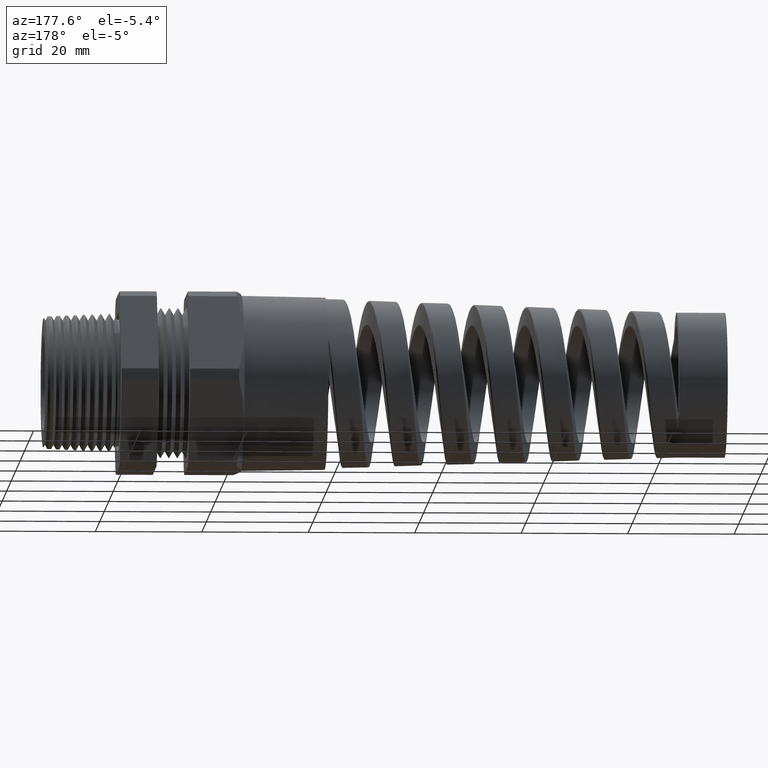
[diagram: clean part render]
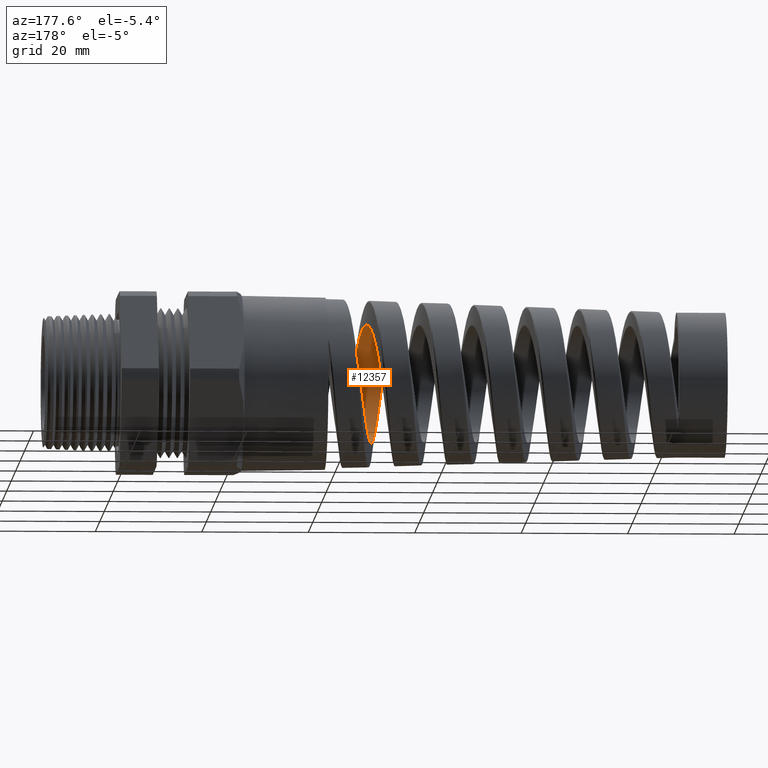
[diagram: same view with one face highlighted and labeled with its STEP entity id]
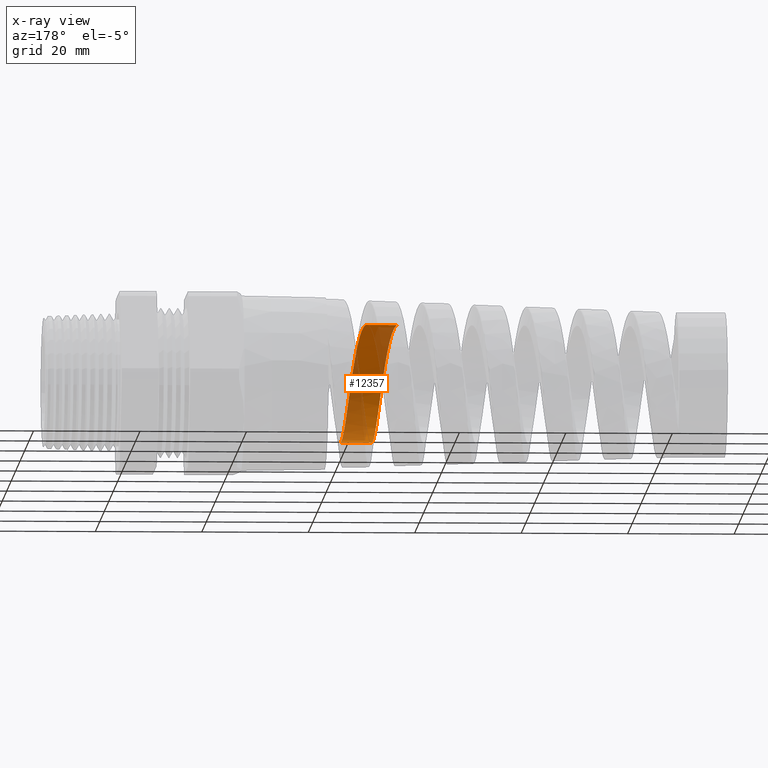
[diagram: x-ray of the same camera — body ghosted, the highlighted face saturated]
A machine part, auxiliary view. The second image highlights one B-rep face of the part: STEP entity #12357.
The next image is the same camera in x-ray: the body ghosted, the highlighted face saturated — about 46% of this face is hidden behind the body in this view.
In plain terms, the highlighted cylindrical surface (partial cylindrical patch) has radius 11.1145 mm, axis along (1, 0, 0).
Its self-contained STEP definition (entity closure, byte-faithful):
#7270 = DIRECTION ( 'NONE',  ( 1.000000000000000000, 0.0000000000000000000, 0.0000000000000000000 ) ) ;
#7271 = VECTOR ( 'NONE', #7270, 39.37007874015748100 ) ;
#7272 = CARTESIAN_POINT ( 'NONE',  ( 0.4924815508901369000, 0.0000000000000000000, -0.4375801833083611800 ) ) ;
#7273 = LINE ( 'NONE', #7272, #7271 ) ;
#7274 = CARTESIAN_POINT ( 'NONE',  ( -1.640475782734829100, 1.012704588276322600E-015, -0.4375801833083611300 ) ) ;
#7492 = CARTESIAN_POINT ( 'NONE',  ( -1.996839665240946100, -0.3932263463374022800, 0.1941140427714756500 ) ) ;
#7493 = CARTESIAN_POINT ( 'NONE',  ( -2.000836526458027900, -0.3797477932531513300, 0.2192768891328715200 ) ) ;
#7494 = CARTESIAN_POINT ( 'NONE',  ( -2.006857070277007000, -0.3559764761294149100, 0.2548739810332262300 ) ) ;
#7495 = CARTESIAN_POINT ( 'NONE',  ( -2.008867674944845300, -0.3474562256372323300, 0.2663793388606673400 ) ) ;
#7496 = CARTESIAN_POINT ( 'NONE',  ( -2.012917233746708900, -0.3291911031545885500, 0.2886468404638837200 ) ) ;
#7497 = CARTESIAN_POINT ( 'NONE',  ( -2.014951048133228500, -0.3194627252952232400, 0.2993744413728673400 ) ) ;
#7498 = CARTESIAN_POINT ( 'NONE',  ( -2.020992823617042200, -0.2890766572365762700, 0.3297444340240807100 ) ) ;
#7499 = CARTESIAN_POINT ( 'NONE',  ( -2.024985057849868900, -0.2670395875408578800, 0.3478312981305349300 ) ) ;
#7500 = CARTESIAN_POINT ( 'NONE',  ( -2.031026918033858500, -0.2313258954973929400, 0.3717120269896500600 ) ) ;
#7501 = CARTESIAN_POINT ( 'NONE',  ( -2.033060776853001800, -0.2189062372299142000, 0.3791620001734821700 ) ) ;
#7502 = CARTESIAN_POINT ( 'NONE',  ( -2.037110197600098300, -0.1935053526841467900, 0.3927332957062582000 ) ) ;
#7503 = CARTESIAN_POINT ( 'NONE',  ( -2.039120905464983000, -0.1805597005689564800, 0.3988460695319048200 ) ) ;
#7504 = CARTESIAN_POINT ( 'NONE',  ( -2.045141097427955100, -0.1410108032164527100, 0.4152188260497285400 ) ) ;
#7505 = CARTESIAN_POINT ( 'NONE',  ( -2.049138284610035200, -0.1137022294384409500, 0.4235316978501310100 ) ) ;
#7506 = CARTESIAN_POINT ( 'NONE',  ( -2.055218309017004000, -0.07129682556079407200, 0.4319732622499446500 ) ) ;
#7507 = CARTESIAN_POINT ( 'NONE',  ( -2.057249094145626500, -0.05699126124738606400, 0.4340890024107069100 ) ) ;
#7508 = CARTESIAN_POINT ( 'NONE',  ( -2.061274203192465100, -0.02850308065314984000, 0.4368853857315105300 ) ) ;
#7509 = CARTESIAN_POINT ( 'NONE',  ( -2.063278111506845000, -0.01425355427090449100, 0.4375801833083611800 ) ) ;
#7510 = CARTESIAN_POINT ( 'NONE',  ( -2.065282973345239400, 1.502516396515344700E-015, 0.4375801833083611300 ) ) ;
#7511 = CARTESIAN_POINT ( 'NONE',  ( -1.871947770003175700, 4.670606366667869800E-013, -0.4375801833083611800 ) ) ;
#7512 = B_SPLINE_CURVE_WITH_KNOTS ( 'NONE', 3,
 ( #7510, #7509, #7508, #7507, #7506, #7505, #7504, #7503, #7502, #7501, #7500, #7499, #7498, #7497, #7496, #7495, #7494, #7493, #7492, #7565, #7564, #7563, #7562, #7561, #7560, #7559, #7558, #7557, #7556, #7555, #7554, #7553, #7552, #7551, #7550, #7549, #7548, #7547, #7546, #7545, #7544, #7543, #7542, #7541, #7540, #7539, #7538, #7537, #7536, #7535 ),
 .UNSPECIFIED., .F., .F.,
 ( 4, 2, 2, 2, 2, 2, 2, 2, 2, 2, 2, 2, 2, 2, 2, 2, 2, 2, 2, 2, 2, 2, 2, 2, 4 ),
 ( 0.3746318151717346100, 0.3757277375148944700, 0.3768236598580543300, 0.3790155045443740500, 0.3801114268875339100, 0.3812073492306937700, 0.3833991939170134900, 0.3844951162601733500, 0.3855910386033332100, 0.3877828832896529400, 0.3888788056328128000, 0.3899747279759726600, 0.3910706503191325200, 0.3921665726622923800, 0.3943584173486121600, 0.3954543396917720200, 0.3965502620349318800, 0.3987421067212516000, 0.3998380290644114600, 0.4009339514075713200, 0.4031257960938910400, 0.4053176407802108200, 0.4064135631233706800, 0.4075094854665305400, 0.4097013301528502600 ),
 .UNSPECIFIED. ) ;
#7513 = CARTESIAN_POINT ( 'NONE',  ( -2.065282973345239400, 1.502516396515344700E-015, 0.4375801833083611300 ) ) ;
#7514 = DIRECTION ( 'NONE',  ( 0.0000000000000000000, 0.0000000000000000000, -1.000000000000000000 ) ) ;
#7515 = DIRECTION ( 'NONE',  ( 1.000000000000000000, 0.0000000000000000000, 0.0000000000000000000 ) ) ;
#7516 = CARTESIAN_POINT ( 'NONE',  ( 0.4924815508901369000, 0.0000000000000000000, 0.0000000000000000000 ) ) ;
#7517 = AXIS2_PLACEMENT_3D ( 'NONE', #7516, #7515, #7514 ) ;
#7518 = CYLINDRICAL_SURFACE ( 'NONE', #7517, 0.4375801833083611800 ) ;
#7519 = FACE_OUTER_BOUND ( 'NONE', #12358, .T. ) ;
#7528 = B_SPLINE_CURVE_WITH_KNOTS ( 'NONE', 3,
 ( #7610, #7609, #7608, #7607, #7606, #7605, #7604, #7603, #7602, #7601, #7600, #7599, #7598, #7597, #7596, #7595, #7594, #7593, #7592, #7591, #7590, #7589, #7588, #7587, #7586, #7585, #7584, #7583, #7582, #7581, #7580, #7579, #7578, #7577, #7576, #7575, #7574, #7573, #7572, #7571, #7570, #7569, #7568, #7567, #7566 ),
 .UNSPECIFIED., .F., .F.,
 ( 4, 2, 2, 2, 2, 2, 2, 2, 2, 2, 2, 2, 2, 2, 2, 2, 1, 2, 2, 2, 2, 2, 4 ),
 ( 0.07060793751075079800, 0.07170483547118865200, 0.07280173343162649200, 0.07499552935250218500, 0.07718932527337787900, 0.07938312119425358600, 0.08048001915469142600, 0.08157691711512928000, 0.08377071303600498700, 0.08596450895688069500, 0.08706140691731854800, 0.08815830487775640200, 0.09035210079863211000, 0.09254589671950783100, 0.09473969264038353800, 0.09583659060082139200, 0.09693348856125924600, 0.09803038652169709900, 0.09912728448213495300, 0.1013210804030106600, 0.1024179783634485100, 0.1035148763238863700, 0.1057086722447620900 ),
 .UNSPECIFIED. ) ;
#7530 = CARTESIAN_POINT ( 'NONE',  ( -1.835009123709763900, -1.705270739795114300E-015, 0.4375801833083611300 ) ) ;
#7531 = DIRECTION ( 'NONE',  ( 1.000000000000000000, 0.0000000000000000000, 0.0000000000000000000 ) ) ;
#7532 = VECTOR ( 'NONE', #7531, 39.37007874015748100 ) ;
#7533 = CARTESIAN_POINT ( 'NONE',  ( 0.4924815508901369000, 5.358811708588965500E-017, 0.4375801833083611800 ) ) ;
#7534 = LINE ( 'NONE', #7533, #7532 ) ;
#7535 = CARTESIAN_POINT ( 'NONE',  ( -1.871947770003175700, 4.670606366667869800E-013, -0.4375801833083611800 ) ) ;
#7536 = CARTESIAN_POINT ( 'NONE',  ( -1.875965779190117200, -0.02857382789006946200, -0.4375801833083916000 ) ) ;
#7537 = CARTESIAN_POINT ( 'NONE',  ( -1.879956218431413600, -0.05695936180215776400, -0.4348075237539161800 ) ) ;
#7538 = CARTESIAN_POINT ( 'NONE',  ( -1.886018305370918500, -0.09923383224083143200, -0.4264216775205185200 ) ) ;
#7539 = CARTESIAN_POINT ( 'NONE',  ( -1.888058002787099500, -0.1133152033557415200, -0.4228970453009934800 ) ) ;
#7540 = CARTESIAN_POINT ( 'NONE',  ( -1.892094246377155700, -0.1407727616816324700, -0.4145663708073654700 ) ) ;
#7541 = CARTESIAN_POINT ( 'NONE',  ( -1.894100552423184000, -0.1542207473153192100, -0.4097506525728247300 ) ) ;
#7542 = CARTESIAN_POINT ( 'NONE',  ( -1.900114000725964900, -0.1937343880561690200, -0.3933907486931653200 ) ) ;
#7543 = CARTESIAN_POINT ( 'NONE',  ( -1.904126599453307400, -0.2190430952141089700, -0.3799083624050561000 ) ) ;
#7544 = CARTESIAN_POINT ( 'NONE',  ( -1.912250431891220100, -0.2670667138934850200, -0.3478298603001244700 ) ) ;
#7545 = CARTESIAN_POINT ( 'NONE',  ( -1.916248811388823000, -0.2891294848505902600, -0.3296879427150015100 ) ) ;
#7546 = CARTESIAN_POINT ( 'NONE',  ( -1.922264740363118800, -0.3193938414182880300, -0.2994451307461990500 ) ) ;
#7547 = CARTESIAN_POINT ( 'NONE',  ( -1.924273312514574100, -0.3290069240641547200, -0.2888555979801711900 ) ) ;
#7548 = CARTESIAN_POINT ( 'NONE',  ( -1.928317079109022500, -0.3472578988582117900, -0.2666365770992768500 ) ) ;
#7549 = CARTESIAN_POINT ( 'NONE',  ( -1.930355494040718200, -0.3559012084434970400, -0.2549829566363081000 ) ) ;
#7550 = CARTESIAN_POINT ( 'NONE',  ( -1.936406186302702700, -0.3797930429594811300, -0.2192165765474397300 ) ) ;
#7551 = CARTESIAN_POINT ( 'NONE',  ( -1.940396399810292900, -0.3932319235939372200, -0.1940713017476605700 ) ) ;
#7552 = CARTESIAN_POINT ( 'NONE',  ( -1.946430907046423000, -0.4096739374012776100, -0.1544290503957180000 ) ) ;
#7553 = CARTESIAN_POINT ( 'NONE',  ( -1.948458601579748500, -0.4145465954339159800, -0.1408389428717682100 ) ) ;
#7554 = CARTESIAN_POINT ( 'NONE',  ( -1.952516139996437700, -0.4229219484017797100, -0.1132321207746741500 ) ) ;
#7555 = CARTESIAN_POINT ( 'NONE',  ( -1.954529949355478600, -0.4263969608850170000, -0.09932705766815595700 ) ) ;
#7556 = CARTESIAN_POINT ( 'NONE',  ( -1.960554928251767400, -0.4347483218985832600, -0.05731995012031838200 ) ) ;
#7557 = CARTESIAN_POINT ( 'NONE',  ( -1.964547126317579300, -0.4375701778664627400, -0.02892830639855490500 ) ) ;
#7558 = CARTESIAN_POINT ( 'NONE',  ( -1.970616740796946200, -0.4375851465630029600, 0.01423653724975193300 ) ) ;
#7559 = CARTESIAN_POINT ( 'NONE',  ( -1.972653138405644700, -0.4368719196520087800, 0.02871675586839636200 ) ) ;
#7560 = CARTESIAN_POINT ( 'NONE',  ( -1.976683994741606200, -0.4340574028378047000, 0.05723545483121632300 ) ) ;
#7561 = CARTESIAN_POINT ( 'NONE',  ( -1.978689755675427000, -0.4319584525207618200, 0.07135456982436649800 ) ) ;
#7562 = CARTESIAN_POINT ( 'NONE',  ( -1.982699779634240000, -0.4263991748713575900, 0.09931426386968396400 ) ) ;
#7563 = CARTESIAN_POINT ( 'NONE',  ( -1.984703642006097700, -0.4229388215680687200, 0.1131548954005036200 ) ) ;
#7564 = CARTESIAN_POINT ( 'NONE',  ( -1.988728768420438400, -0.4146402617416499200, 0.1405515225292907300 ) ) ;
#7565 = CARTESIAN_POINT ( 'NONE',  ( -1.990759748237481500, -0.4097748828117991900, 0.1541708899191012400 ) ) ;
#7566 = CARTESIAN_POINT ( 'NONE',  ( -1.835009123709763900, -1.705270739795114300E-015, 0.4375801833083611300 ) ) ;
#7567 = CARTESIAN_POINT ( 'NONE',  ( -1.830959761671625300, -0.02862179422430982000, 0.4375801833083611300 ) ) ;
#7568 = CARTESIAN_POINT ( 'NONE',  ( -1.826944370632943100, -0.05699508909885344500, 0.4347981105184678400 ) ) ;
#7569 = CARTESIAN_POINT ( 'NONE',  ( -1.820859199772065300, -0.09916474401018542100, 0.4264365432704877400 ) ) ;
#7570 = CARTESIAN_POINT ( 'NONE',  ( -1.818809572955730500, -0.1132323761481686400, 0.4229205427494585600 ) ) ;
#7571 = CARTESIAN_POINT ( 'NONE',  ( -1.814738936852544800, -0.1407647938854036400, 0.4145704153579421500 ) ) ;
#7572 = CARTESIAN_POINT ( 'NONE',  ( -1.812717380730324500, -0.1542340810056711300, 0.4097459187785024700 ) ) ;
#7573 = CARTESIAN_POINT ( 'NONE',  ( -1.806663094584837000, -0.1937695822179589200, 0.3933746017878537700 ) ) ;
#7574 = CARTESIAN_POINT ( 'NONE',  ( -1.802640550091581600, -0.2189716638058250000, 0.3799478870142468100 ) ) ;
#7575 = CARTESIAN_POINT ( 'NONE',  ( -1.796514601507940500, -0.2549679253890418900, 0.3559156026926366700 ) ) ;
#7576 = CARTESIAN_POINT ( 'NONE',  ( -1.794475239275041200, -0.2665567588704843000, 0.3473161513378674700 ) ) ;
#7577 = CARTESIAN_POINT ( 'NONE',  ( -1.790427906545106100, -0.2886698621038061300, 0.3291667136766042700 ) ) ;
#7578 = CARTESIAN_POINT ( 'NONE',  ( -1.786397275830452000, -0.3098047349451520400, 0.3100097142605088800 ) ) ;
#7579 = CARTESIAN_POINT ( 'NONE',  ( -1.782360382991304400, -0.3289993655041350000, 0.2888623226799988400 ) ) ;
#7580 = CARTESIAN_POINT ( 'NONE',  ( -1.778301268777133800, -0.3472046416952170300, 0.2667038821455419200 ) ) ;
#7581 = CARTESIAN_POINT ( 'NONE',  ( -1.776249587092890700, -0.3558530130831976100, 0.2550522900107295400 ) ) ;
#7582 = CARTESIAN_POINT ( 'NONE',  ( -1.770146921386694000, -0.3798102182613826100, 0.2191964823443452400 ) ) ;
#7583 = CARTESIAN_POINT ( 'NONE',  ( -1.766131991601074000, -0.3932463473871928800, 0.1940351765772014300 ) ) ;
#7584 = CARTESIAN_POINT ( 'NONE',  ( -1.758047930663513900, -0.4151341195537627800, 0.1412657151082197800 ) ) ;
#7585 = CARTESIAN_POINT ( 'NONE',  ( -1.753940406264620700, -0.4236037611574492400, 0.1133750258355805300 ) ) ;
#7586 = CARTESIAN_POINT ( 'NONE',  ( -1.745848388680020700, -0.4347557020448897200, 0.05728457462014643200 ) ) ;
#7587 = CARTESIAN_POINT ( 'NONE',  ( -1.741834627351077900, -0.4375661544955462600, 0.02890976394844292600 ) ) ;
#7588 = CARTESIAN_POINT ( 'NONE',  ( -1.735742959595395700, -0.4375871198610836700, -0.01413519199408706300 ) ) ;
#7589 = CARTESIAN_POINT ( 'NONE',  ( -1.733690665508854000, -0.4368784964327950300, -0.02863411883303060600 ) ) ;
#7590 = CARTESIAN_POINT ( 'NONE',  ( -1.729624398029513800, -0.4340602064095631700, -0.05722299029595713500 ) ) ;
#7591 = CARTESIAN_POINT ( 'NONE',  ( -1.727603948131670300, -0.4319574805304802800, -0.07136142105399861900 ) ) ;
#7592 = CARTESIAN_POINT ( 'NONE',  ( -1.721551905726198100, -0.4236146044258832200, -0.1133149859855705900 ) ) ;
#7593 = CARTESIAN_POINT ( 'NONE',  ( -1.717529077118849600, -0.4153592339139792200, -0.1406727466861520100 ) ) ;
#7594 = CARTESIAN_POINT ( 'NONE',  ( -1.709346198339529900, -0.3932431900410339700, -0.1940925252146130900 ) ) ;
#7595 = CARTESIAN_POINT ( 'NONE',  ( -1.705317542664336800, -0.3797337731532673400, -0.2192983108555866000 ) ) ;
#7596 = CARTESIAN_POINT ( 'NONE',  ( -1.699266301369359200, -0.3559804553617761400, -0.2548678087222657200 ) ) ;
#7597 = CARTESIAN_POINT ( 'NONE',  ( -1.697247034017262500, -0.3474754181905434500, -0.2663520348166715800 ) ) ;
#7598 = CARTESIAN_POINT ( 'NONE',  ( -1.693183856432384700, -0.3292674050792560600, -0.2885577041945813800 ) ) ;
#7599 = CARTESIAN_POINT ( 'NONE',  ( -1.691131800721219900, -0.3195192960989223800, -0.2993156610824900800 ) ) ;
#7600 = CARTESIAN_POINT ( 'NONE',  ( -1.685036891850956400, -0.2890657970505274300, -0.3297597560318743500 ) ) ;
#7601 = CARTESIAN_POINT ( 'NONE',  ( -1.681020654652162700, -0.2670181710520367900, -0.3478432703001617700 ) ) ;
#7602 = CARTESIAN_POINT ( 'NONE',  ( -1.672931870598636900, -0.2194924016455827600, -0.3796270933230929700 ) ) ;
#7603 = CARTESIAN_POINT ( 'NONE',  ( -1.668826458150370000, -0.1937844903163398200, -0.3933703655027224700 ) ) ;
#7604 = CARTESIAN_POINT ( 'NONE',  ( -1.660738420560507400, -0.1409899975295005600, -0.4152282429454198800 ) ) ;
#7605 = CARTESIAN_POINT ( 'NONE',  ( -1.656722300092552600, -0.1137025708773067600, -0.4235256162511320500 ) ) ;
#7606 = CARTESIAN_POINT ( 'NONE',  ( -1.650623860366568200, -0.07142856637875763500, -0.4319500296150727300 ) ) ;
#7607 = CARTESIAN_POINT ( 'NONE',  ( -1.648572688994670600, -0.05707123886279779500, -0.4340795394397079000 ) ) ;
#7608 = CARTESIAN_POINT ( 'NONE',  ( -1.644512745225381400, -0.02852037372562072500, -0.4368852951840728200 ) ) ;
#7609 = CARTESIAN_POINT ( 'NONE',  ( -1.642493492219258000, -0.01425473984493832300, -0.4375801833083613500 ) ) ;
#7610 = CARTESIAN_POINT ( 'NONE',  ( -1.640475782734829100, 1.012704588276322600E-015, -0.4375801833083611300 ) ) ;
#12336 = VERTEX_POINT ( 'NONE', #7274 ) ;
#12337 = ORIENTED_EDGE ( 'NONE', *, *, #12338, .F. ) ;
#12338 = EDGE_CURVE ( 'NONE', #12362, #12336, #7273, .T. ) ;
#12357 = ADVANCED_FACE ( 'NONE', ( #7519 ), #7518, .F. ) ;
#12358 = EDGE_LOOP ( 'NONE', ( #12359, #12363, #12366, #12337 ) ) ;
#12359 = ORIENTED_EDGE ( 'NONE', *, *, #12360, .F. ) ;
#12360 = EDGE_CURVE ( 'NONE', #12361, #12362, #7512, .T. ) ;
#12361 = VERTEX_POINT ( 'NONE', #7513 ) ;
#12362 = VERTEX_POINT ( 'NONE', #7511 ) ;
#12363 = ORIENTED_EDGE ( 'NONE', *, *, #12364, .T. ) ;
#12364 = EDGE_CURVE ( 'NONE', #12361, #12365, #7534, .T. ) ;
#12365 = VERTEX_POINT ( 'NONE', #7530 ) ;
#12366 = ORIENTED_EDGE ( 'NONE', *, *, #12367, .F. ) ;
#12367 = EDGE_CURVE ( 'NONE', #12336, #12365, #7528, .T. ) ;